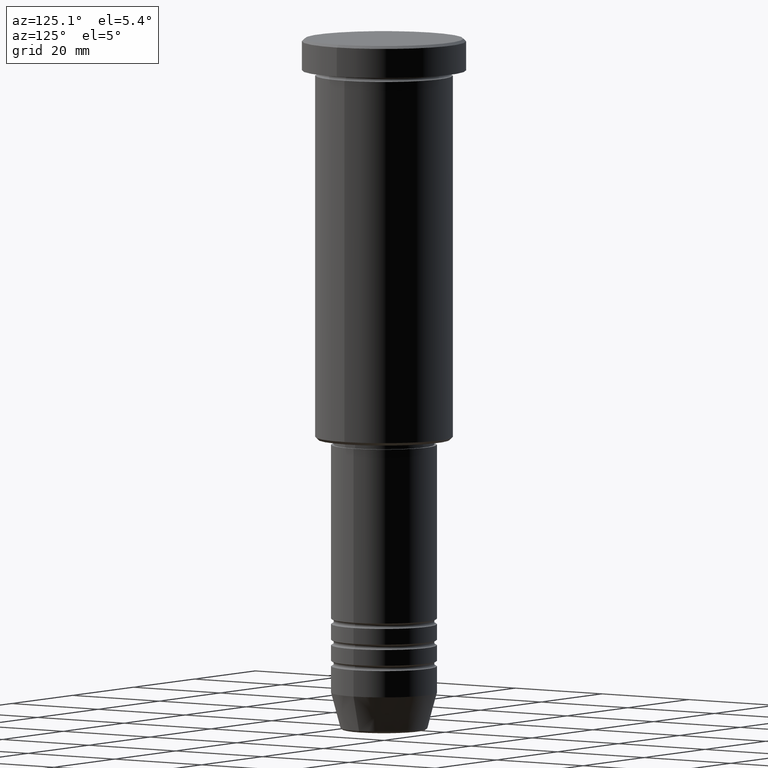
[diagram: clean part render]
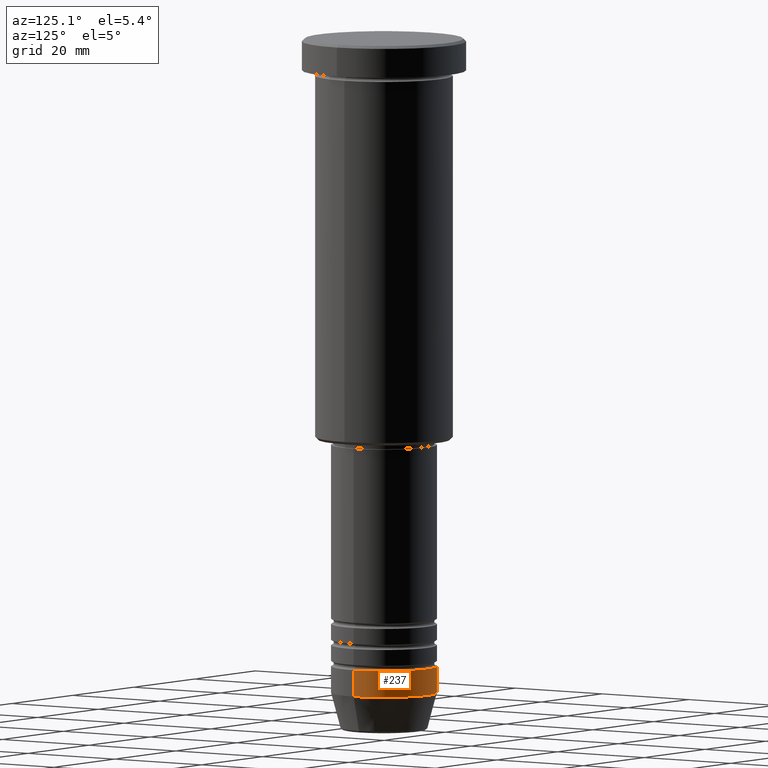
[diagram: same view with one face highlighted and labeled with its STEP entity id]
A machine part, auxiliary view. The second image highlights one B-rep face of the part: STEP entity #237.
In plain terms, the highlighted cylindrical surface (partial cylindrical patch) has radius 10 mm, axis along (-0, -0, 1).
Its self-contained STEP definition (entity closure, byte-faithful):
#5 = VERTEX_POINT ( 'NONE', #932 ) ;
#9 = VECTOR ( 'NONE', #179, 1000.000000000000000 ) ;
#102 = EDGE_CURVE ( 'NONE', #5, #191, #807, .T. ) ;
#119 = DIRECTION ( 'NONE',  ( -0.000000000000000000, -0.000000000000000000, 1.000000000000000000 ) ) ;
#179 = DIRECTION ( 'NONE',  ( -0.000000000000000000, -0.000000000000000000, 1.000000000000000000 ) ) ;
#191 = VERTEX_POINT ( 'NONE', #740 ) ;
#202 = CYLINDRICAL_SURFACE ( 'NONE', #481, 10.00000000000000000 ) ;
#218 = CARTESIAN_POINT ( 'NONE',  ( 10.00000000000000000, 0.000000000000000000, -119.0000000000000000 ) ) ;
#237 = ADVANCED_FACE ( 'NONE', ( #401 ), #202, .T. ) ;
#263 = AXIS2_PLACEMENT_3D ( 'NONE', #942, #503, #857 ) ;
#280 = CARTESIAN_POINT ( 'NONE',  ( 0.000000000000000000, 0.000000000000000000, -119.0000000000000000 ) ) ;
#307 = CIRCLE ( 'NONE', #723, 10.00000000000000000 ) ;
#386 = DIRECTION ( 'NONE',  ( 1.000000000000000000, 0.000000000000000000, 0.000000000000000000 ) ) ;
#399 = VECTOR ( 'NONE', #465, 1000.000000000000000 ) ;
#401 = FACE_OUTER_BOUND ( 'NONE', #918, .T. ) ;
#444 = VERTEX_POINT ( 'NONE', #218 ) ;
#465 = DIRECTION ( 'NONE',  ( -0.000000000000000000, -0.000000000000000000, 1.000000000000000000 ) ) ;
#469 = EDGE_CURVE ( 'NONE', #493, #444, #717, .T. ) ;
#481 = AXIS2_PLACEMENT_3D ( 'NONE', #1029, #119, #386 ) ;
#493 = VERTEX_POINT ( 'NONE', #1182 ) ;
#503 = DIRECTION ( 'NONE',  ( -0.000000000000000000, -0.000000000000000000, 1.000000000000000000 ) ) ;
#576 = DIRECTION ( 'NONE',  ( -0.000000000000000000, -0.000000000000000000, 1.000000000000000000 ) ) ;
#715 = EDGE_CURVE ( 'NONE', #493, #5, #780, .T. ) ;
#717 = LINE ( 'NONE', #996, #399 ) ;
#723 = AXIS2_PLACEMENT_3D ( 'NONE', #280, #576, #1010 ) ;
#740 = CARTESIAN_POINT ( 'NONE',  ( -10.00000000000000000, 1.224646799147353256E-15, -119.0000000000000000 ) ) ;
#780 = CIRCLE ( 'NONE', #263, 10.00000000000000000 ) ;
#789 = ORIENTED_EDGE ( 'NONE', *, *, #871, .F. ) ;
#807 = LINE ( 'NONE', #891, #9 ) ;
#857 = DIRECTION ( 'NONE',  ( 1.000000000000000000, 0.000000000000000000, 0.000000000000000000 ) ) ;
#871 = EDGE_CURVE ( 'NONE', #444, #191, #307, .T. ) ;
#889 = ORIENTED_EDGE ( 'NONE', *, *, #715, .T. ) ;
#891 = CARTESIAN_POINT ( 'NONE',  ( -10.00000000000000000, 1.224646799147353256E-15, 0.000000000000000000 ) ) ;
#918 = EDGE_LOOP ( 'NONE', ( #889, #1142, #789, #1103 ) ) ;
#932 = CARTESIAN_POINT ( 'NONE',  ( -10.00000000000000000, 1.224646799147353256E-15, -124.0000000000000000 ) ) ;
#942 = CARTESIAN_POINT ( 'NONE',  ( 0.000000000000000000, 0.000000000000000000, -124.0000000000000000 ) ) ;
#996 = CARTESIAN_POINT ( 'NONE',  ( 10.00000000000000000, 0.000000000000000000, 0.000000000000000000 ) ) ;
#1010 = DIRECTION ( 'NONE',  ( 1.000000000000000000, 0.000000000000000000, 0.000000000000000000 ) ) ;
#1029 = CARTESIAN_POINT ( 'NONE',  ( 0.000000000000000000, 0.000000000000000000, 0.000000000000000000 ) ) ;
#1103 = ORIENTED_EDGE ( 'NONE', *, *, #469, .F. ) ;
#1142 = ORIENTED_EDGE ( 'NONE', *, *, #102, .T. ) ;
#1182 = CARTESIAN_POINT ( 'NONE',  ( 10.00000000000000000, 0.000000000000000000, -124.0000000000000000 ) ) ;